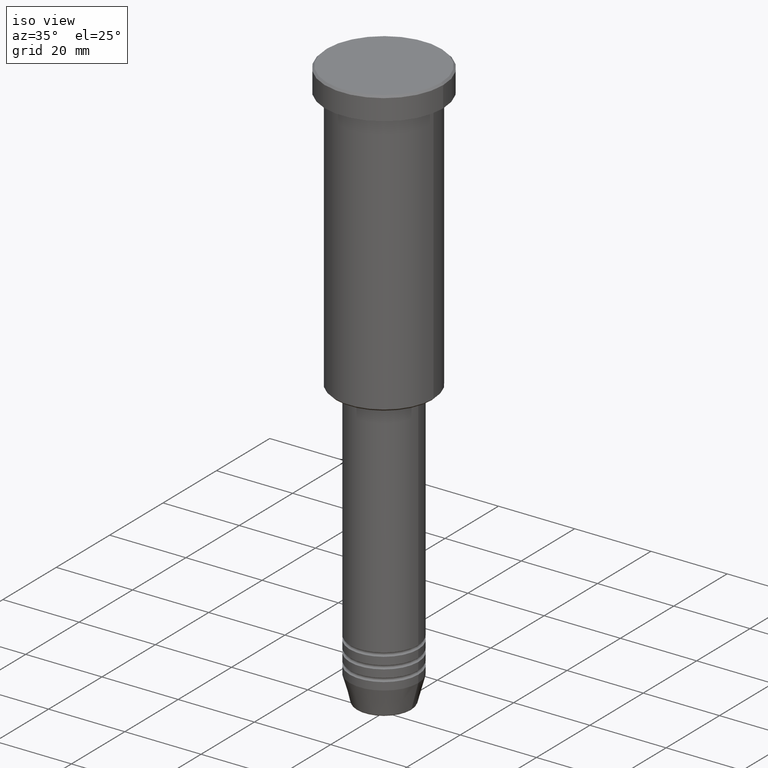
[diagram: clean part render]
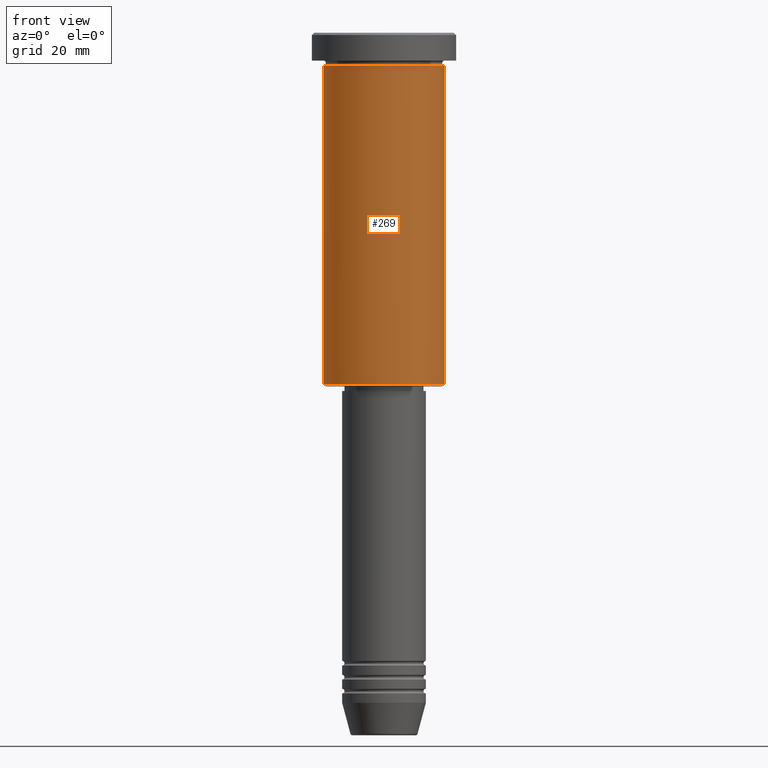
[diagram: tour spotlight — one face highlighted and labeled with its STEP entity id]
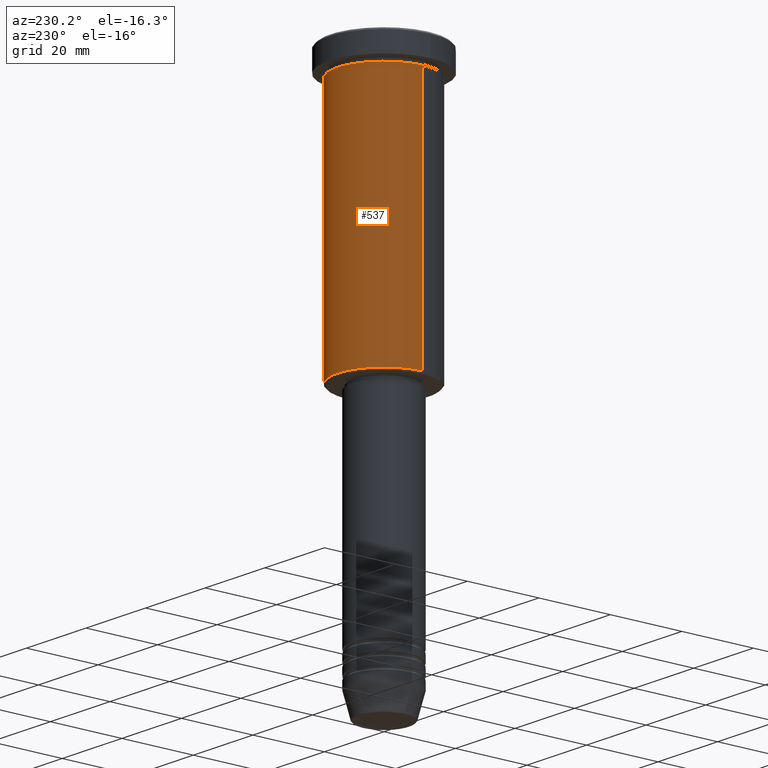
[diagram: tour spotlight — one face highlighted and labeled with its STEP entity id]
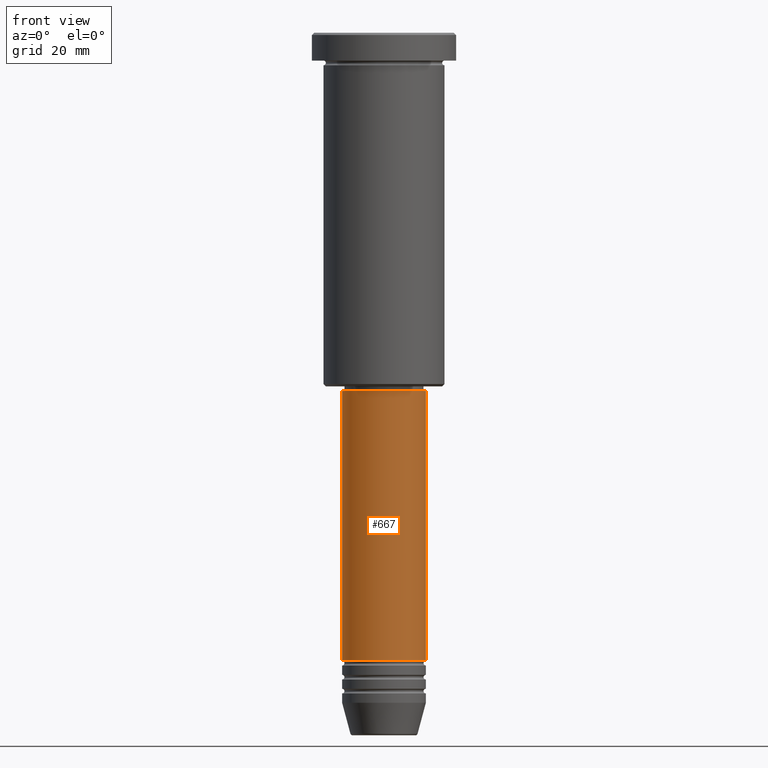
[diagram: tour spotlight — one face highlighted and labeled with its STEP entity id]
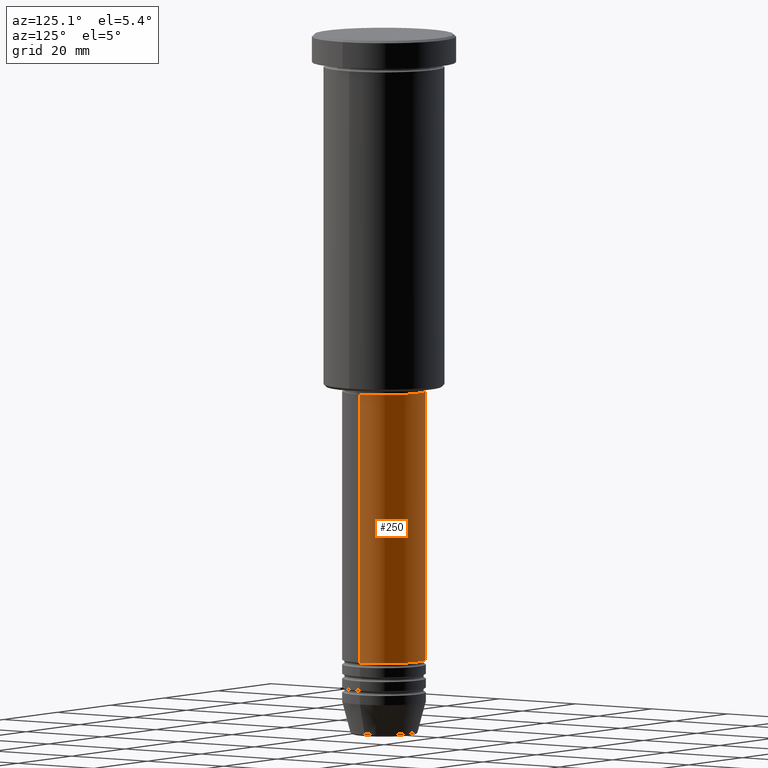
[diagram: tour spotlight — one face highlighted and labeled with its STEP entity id]
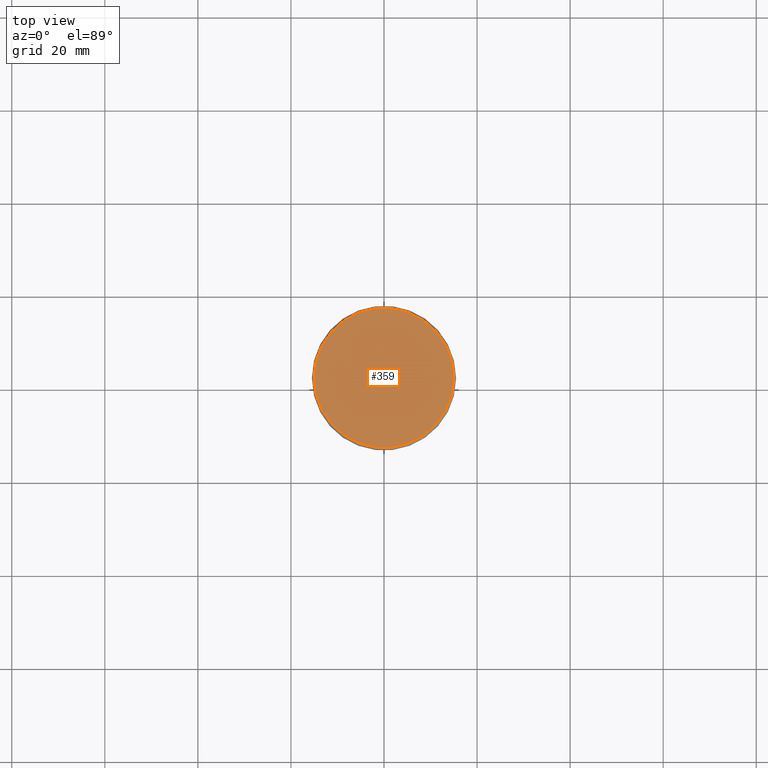
[diagram: tour spotlight — one face highlighted and labeled with its STEP entity id]
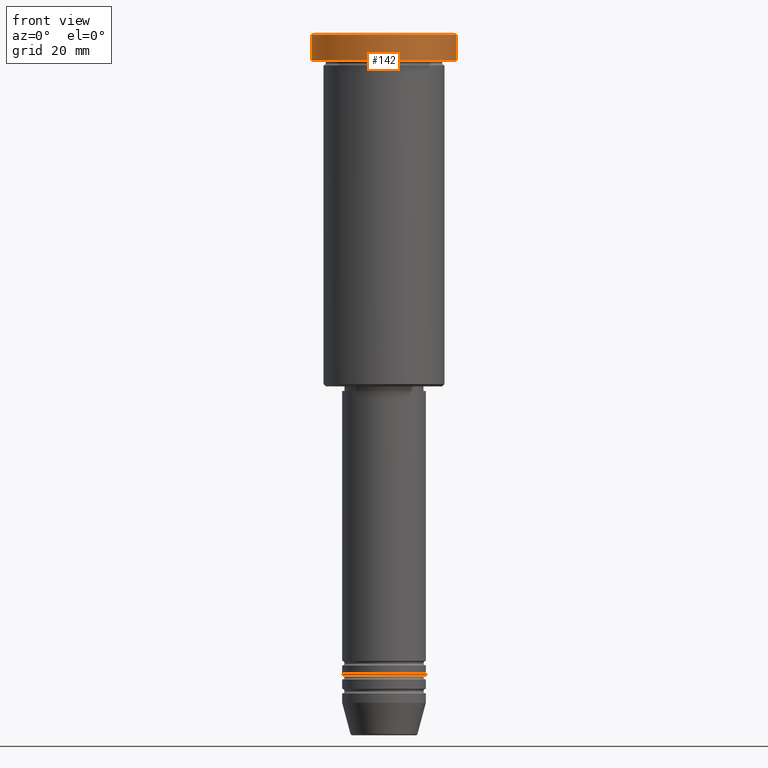
[diagram: tour spotlight — one face highlighted and labeled with its STEP entity id]
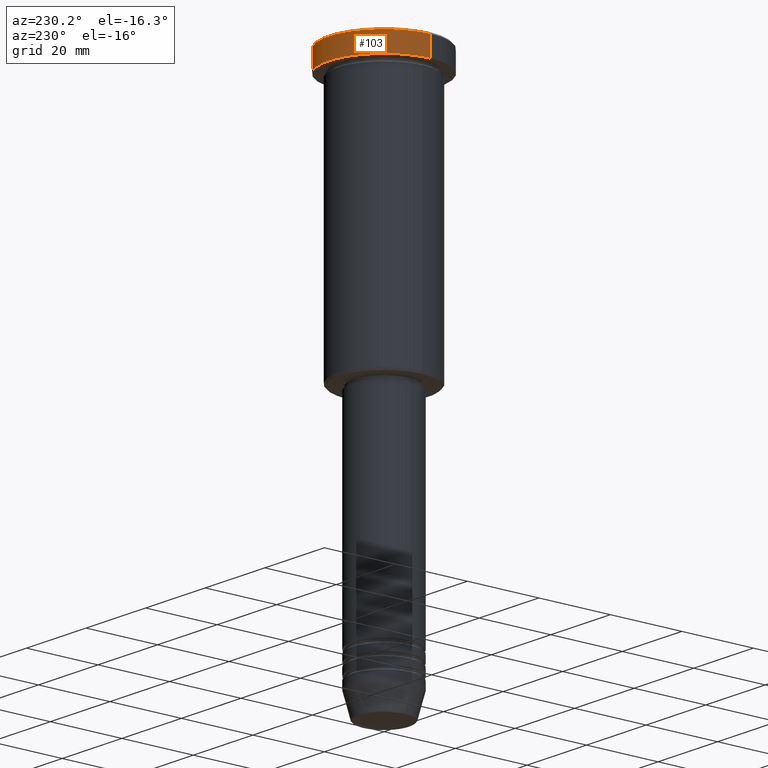
[diagram: tour spotlight — one face highlighted and labeled with its STEP entity id]
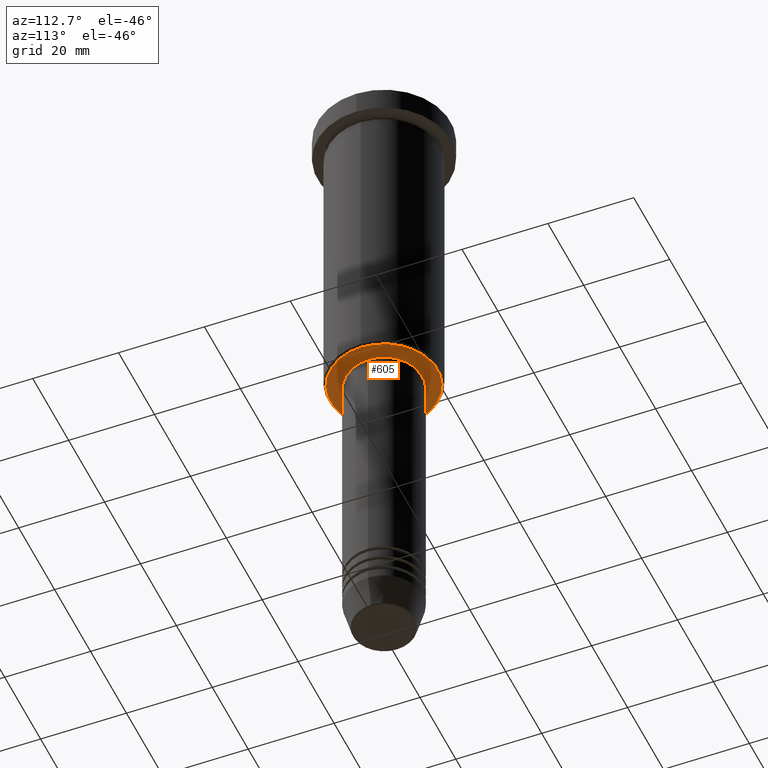
[diagram: tour spotlight — one face highlighted and labeled with its STEP entity id]
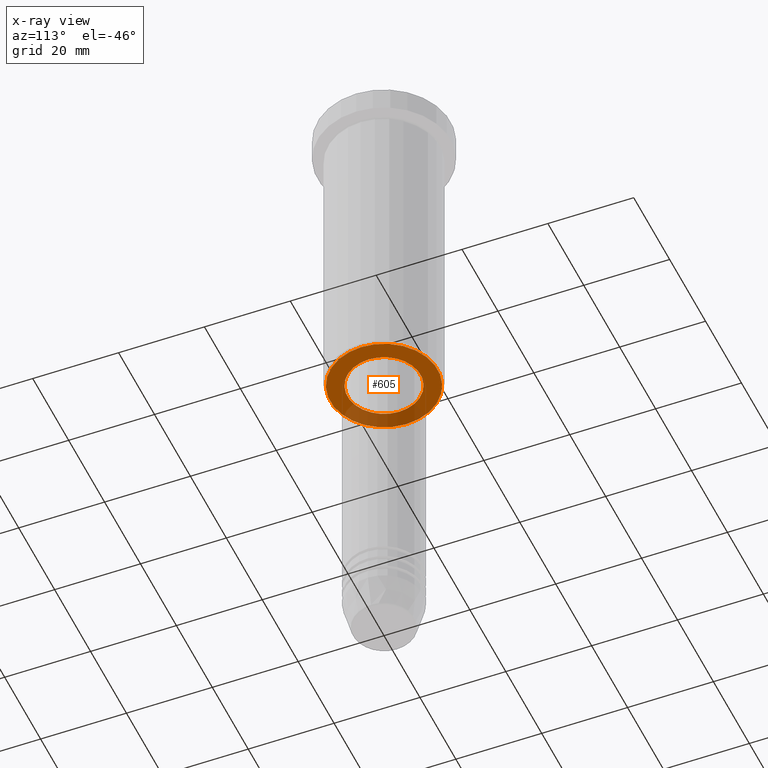
[diagram: x-ray of the same camera — body ghosted, this tour face saturated]
A machine part: a face-by-face anatomy tour. The part has 43 B-rep faces; the first image is the clean iso view, then the 8 largest visible faces are spotlighted one at a time (largest first), each with its STEP entity span.

Face 1 — front view, entity #269. In plain terms, the highlighted cylindrical surface (partial cylindrical patch) has radius 13 mm, axis along (-0, -0, 1).
Definition (entity closure, byte-faithful):
#53 = VECTOR ( 'NONE', #844, 1000.000000000000000 ) ;
#61 = EDGE_CURVE ( 'NONE', #1147, #967, #490, .T. ) ;
#65 = EDGE_CURVE ( 'NONE', #301, #457, #763, .T. ) ;
#74 = CARTESIAN_POINT ( 'NONE',  ( -13.00000000000000000, 1.592040838891559095E-15, -6.999999999999995559 ) ) ;
#119 = EDGE_CURVE ( 'NONE', #457, #967, #1103, .T. ) ;
#178 = ORIENTED_EDGE ( 'NONE', *, *, #65, .F. ) ;
#222 = DIRECTION ( 'NONE',  ( -1.000000000000000000, 0.000000000000000000, 0.000000000000000000 ) ) ;
#230 = CARTESIAN_POINT ( 'NONE',  ( -13.00000000000000000, 1.592040838891559095E-15, 0.000000000000000000 ) ) ;
#242 = CARTESIAN_POINT ( 'NONE',  ( 13.00000000000000000, 0.000000000000000000, -6.999999999999995559 ) ) ;
#257 = FACE_OUTER_BOUND ( 'NONE', #482, .T. ) ;
#269 = ADVANCED_FACE ( 'NONE', ( #257 ), #557, .T. ) ;
#299 = CARTESIAN_POINT ( 'NONE',  ( 0.000000000000000000, 0.000000000000000000, -6.999999999999995559 ) ) ;
#301 = VERTEX_POINT ( 'NONE', #1095 ) ;
#310 = ORIENTED_EDGE ( 'NONE', *, *, #858, .T. ) ;
#322 = DIRECTION ( 'NONE',  ( -0.000000000000000000, -0.000000000000000000, 1.000000000000000000 ) ) ;
#415 = AXIS2_PLACEMENT_3D ( 'NONE', #299, #649, #1107 ) ;
#457 = VERTEX_POINT ( 'NONE', #74 ) ;
#464 = DIRECTION ( 'NONE',  ( -0.000000000000000000, -0.000000000000000000, 1.000000000000000000 ) ) ;
#482 = EDGE_LOOP ( 'NONE', ( #178, #310, #787, #486 ) ) ;
#486 = ORIENTED_EDGE ( 'NONE', *, *, #119, .F. ) ;
#490 = LINE ( 'NONE', #1014, #53 ) ;
#557 = CYLINDRICAL_SURFACE ( 'NONE', #1122, 13.00000000000000000 ) ;
#578 = DIRECTION ( 'NONE',  ( -0.000000000000000000, -0.000000000000000000, 1.000000000000000000 ) ) ;
#579 = VECTOR ( 'NONE', #578, 1000.000000000000000 ) ;
#627 = CARTESIAN_POINT ( 'NONE',  ( 13.00000000000000000, 0.000000000000000000, -75.49999999999994316 ) ) ;
#649 = DIRECTION ( 'NONE',  ( -0.000000000000000000, -0.000000000000000000, 1.000000000000000000 ) ) ;
#670 = AXIS2_PLACEMENT_3D ( 'NONE', #1119, #322, #222 ) ;
#747 = DIRECTION ( 'NONE',  ( 1.000000000000000000, 0.000000000000000000, 0.000000000000000000 ) ) ;
#763 = LINE ( 'NONE', #230, #579 ) ;
#787 = ORIENTED_EDGE ( 'NONE', *, *, #61, .T. ) ;
#829 = CARTESIAN_POINT ( 'NONE',  ( 0.000000000000000000, 0.000000000000000000, 0.000000000000000000 ) ) ;
#844 = DIRECTION ( 'NONE',  ( -0.000000000000000000, -0.000000000000000000, 1.000000000000000000 ) ) ;
#858 = EDGE_CURVE ( 'NONE', #301, #1147, #1176, .T. ) ;
#967 = VERTEX_POINT ( 'NONE', #242 ) ;
#1014 = CARTESIAN_POINT ( 'NONE',  ( 13.00000000000000000, 0.000000000000000000, 0.000000000000000000 ) ) ;
#1095 = CARTESIAN_POINT ( 'NONE',  ( -13.00000000000000000, 1.592040838891559095E-15, -75.49999999999994316 ) ) ;
#1103 = CIRCLE ( 'NONE', #415, 13.00000000000000000 ) ;
#1107 = DIRECTION ( 'NONE',  ( 1.000000000000000000, 0.000000000000000000, 0.000000000000000000 ) ) ;
#1119 = CARTESIAN_POINT ( 'NONE',  ( 0.000000000000000000, 0.000000000000000000, -75.49999999999994316 ) ) ;
#1122 = AXIS2_PLACEMENT_3D ( 'NONE', #829, #464, #747 ) ;
#1147 = VERTEX_POINT ( 'NONE', #627 ) ;
#1176 = CIRCLE ( 'NONE', #670, 13.00000000000000000 ) ;

Face 2 — auxiliary view, entity #537. In plain terms, the highlighted cylindrical surface (partial cylindrical patch) has radius 13 mm, axis along (-0, -0, 1).
Definition (entity closure, byte-faithful):
#53 = VECTOR ( 'NONE', #844, 1000.000000000000000 ) ;
#61 = EDGE_CURVE ( 'NONE', #1147, #967, #490, .T. ) ;
#65 = EDGE_CURVE ( 'NONE', #301, #457, #763, .T. ) ;
#74 = CARTESIAN_POINT ( 'NONE',  ( -13.00000000000000000, 1.592040838891559095E-15, -6.999999999999995559 ) ) ;
#129 = DIRECTION ( 'NONE',  ( 1.000000000000000000, 0.000000000000000000, 0.000000000000000000 ) ) ;
#134 = DIRECTION ( 'NONE',  ( -0.000000000000000000, -0.000000000000000000, 1.000000000000000000 ) ) ;
#207 = ORIENTED_EDGE ( 'NONE', *, *, #836, .T. ) ;
#221 = AXIS2_PLACEMENT_3D ( 'NONE', #871, #599, #445 ) ;
#230 = CARTESIAN_POINT ( 'NONE',  ( -13.00000000000000000, 1.592040838891559095E-15, 0.000000000000000000 ) ) ;
#242 = CARTESIAN_POINT ( 'NONE',  ( 13.00000000000000000, 0.000000000000000000, -6.999999999999995559 ) ) ;
#293 = ORIENTED_EDGE ( 'NONE', *, *, #65, .T. ) ;
#301 = VERTEX_POINT ( 'NONE', #1095 ) ;
#305 = ORIENTED_EDGE ( 'NONE', *, *, #406, .F. ) ;
#406 = EDGE_CURVE ( 'NONE', #967, #457, #1000, .T. ) ;
#445 = DIRECTION ( 'NONE',  ( 1.000000000000000000, 0.000000000000000000, 0.000000000000000000 ) ) ;
#453 = ORIENTED_EDGE ( 'NONE', *, *, #61, .F. ) ;
#457 = VERTEX_POINT ( 'NONE', #74 ) ;
#489 = DIRECTION ( 'NONE',  ( -1.000000000000000000, 0.000000000000000000, 0.000000000000000000 ) ) ;
#490 = LINE ( 'NONE', #1014, #53 ) ;
#492 = CIRCLE ( 'NONE', #622, 13.00000000000000000 ) ;
#533 = AXIS2_PLACEMENT_3D ( 'NONE', #1168, #710, #129 ) ;
#537 = ADVANCED_FACE ( 'NONE', ( #800 ), #971, .T. ) ;
#578 = DIRECTION ( 'NONE',  ( -0.000000000000000000, -0.000000000000000000, 1.000000000000000000 ) ) ;
#579 = VECTOR ( 'NONE', #578, 1000.000000000000000 ) ;
#599 = DIRECTION ( 'NONE',  ( -0.000000000000000000, -0.000000000000000000, 1.000000000000000000 ) ) ;
#622 = AXIS2_PLACEMENT_3D ( 'NONE', #661, #134, #489 ) ;
#627 = CARTESIAN_POINT ( 'NONE',  ( 13.00000000000000000, 0.000000000000000000, -75.49999999999994316 ) ) ;
#661 = CARTESIAN_POINT ( 'NONE',  ( 0.000000000000000000, 0.000000000000000000, -75.49999999999994316 ) ) ;
#705 = EDGE_LOOP ( 'NONE', ( #207, #293, #305, #453 ) ) ;
#710 = DIRECTION ( 'NONE',  ( -0.000000000000000000, -0.000000000000000000, 1.000000000000000000 ) ) ;
#763 = LINE ( 'NONE', #230, #579 ) ;
#800 = FACE_OUTER_BOUND ( 'NONE', #705, .T. ) ;
#836 = EDGE_CURVE ( 'NONE', #1147, #301, #492, .T. ) ;
#844 = DIRECTION ( 'NONE',  ( -0.000000000000000000, -0.000000000000000000, 1.000000000000000000 ) ) ;
#871 = CARTESIAN_POINT ( 'NONE',  ( 0.000000000000000000, 0.000000000000000000, 0.000000000000000000 ) ) ;
#967 = VERTEX_POINT ( 'NONE', #242 ) ;
#971 = CYLINDRICAL_SURFACE ( 'NONE', #221, 13.00000000000000000 ) ;
#1000 = CIRCLE ( 'NONE', #533, 13.00000000000000000 ) ;
#1014 = CARTESIAN_POINT ( 'NONE',  ( 13.00000000000000000, 0.000000000000000000, 0.000000000000000000 ) ) ;
#1095 = CARTESIAN_POINT ( 'NONE',  ( -13.00000000000000000, 1.592040838891559095E-15, -75.49999999999994316 ) ) ;
#1147 = VERTEX_POINT ( 'NONE', #627 ) ;
#1168 = CARTESIAN_POINT ( 'NONE',  ( 0.000000000000000000, 0.000000000000000000, -6.999999999999995559 ) ) ;

Face 3 — front view, entity #667. In plain terms, the highlighted cylindrical surface (partial cylindrical patch) has radius 9 mm, axis along (-0, -0, 1).
Definition (entity closure, byte-faithful):
#57 = CARTESIAN_POINT ( 'NONE',  ( -9.000000000000000000, 1.102182119232617714E-15, 0.000000000000000000 ) ) ;
#84 = CARTESIAN_POINT ( 'NONE',  ( -9.000000000000000000, 1.102182119232617714E-15, -134.9999999999999432 ) ) ;
#93 = AXIS2_PLACEMENT_3D ( 'NONE', #700, #334, #522 ) ;
#96 = AXIS2_PLACEMENT_3D ( 'NONE', #186, #825, #281 ) ;
#175 = CARTESIAN_POINT ( 'NONE',  ( 9.000000000000000000, 0.000000000000000000, 0.000000000000000000 ) ) ;
#186 = CARTESIAN_POINT ( 'NONE',  ( 0.000000000000000000, 0.000000000000000000, 0.000000000000000000 ) ) ;
#199 = AXIS2_PLACEMENT_3D ( 'NONE', #1023, #312, #534 ) ;
#238 = CIRCLE ( 'NONE', #93, 9.000000000000000000 ) ;
#281 = DIRECTION ( 'NONE',  ( 1.000000000000000000, 0.000000000000000000, 0.000000000000000000 ) ) ;
#283 = ORIENTED_EDGE ( 'NONE', *, *, #501, .T. ) ;
#284 = VERTEX_POINT ( 'NONE', #456 ) ;
#312 = DIRECTION ( 'NONE',  ( -0.000000000000000000, -0.000000000000000000, 1.000000000000000000 ) ) ;
#334 = DIRECTION ( 'NONE',  ( -0.000000000000000000, -0.000000000000000000, 1.000000000000000000 ) ) ;
#371 = EDGE_CURVE ( 'NONE', #444, #925, #602, .T. ) ;
#374 = CYLINDRICAL_SURFACE ( 'NONE', #96, 9.000000000000000000 ) ;
#442 = CIRCLE ( 'NONE', #199, 9.000000000000000000 ) ;
#444 = VERTEX_POINT ( 'NONE', #885 ) ;
#456 = CARTESIAN_POINT ( 'NONE',  ( -9.000000000000000000, 1.102182119232617714E-15, -76.99999999999998579 ) ) ;
#501 = EDGE_CURVE ( 'NONE', #735, #444, #442, .T. ) ;
#522 = DIRECTION ( 'NONE',  ( 1.000000000000000000, 0.000000000000000000, 0.000000000000000000 ) ) ;
#534 = DIRECTION ( 'NONE',  ( 1.000000000000000000, 0.000000000000000000, 0.000000000000000000 ) ) ;
#555 = FACE_OUTER_BOUND ( 'NONE', #744, .T. ) ;
#596 = LINE ( 'NONE', #57, #1082 ) ;
#602 = LINE ( 'NONE', #175, #1042 ) ;
#612 = EDGE_CURVE ( 'NONE', #284, #925, #238, .T. ) ;
#617 = ORIENTED_EDGE ( 'NONE', *, *, #612, .F. ) ;
#667 = ADVANCED_FACE ( 'NONE', ( #555 ), #374, .T. ) ;
#700 = CARTESIAN_POINT ( 'NONE',  ( 0.000000000000000000, 0.000000000000000000, -76.99999999999998579 ) ) ;
#735 = VERTEX_POINT ( 'NONE', #84 ) ;
#744 = EDGE_LOOP ( 'NONE', ( #1005, #283, #778, #617 ) ) ;
#778 = ORIENTED_EDGE ( 'NONE', *, *, #371, .T. ) ;
#825 = DIRECTION ( 'NONE',  ( -0.000000000000000000, -0.000000000000000000, 1.000000000000000000 ) ) ;
#885 = CARTESIAN_POINT ( 'NONE',  ( 9.000000000000000000, 0.000000000000000000, -134.9999999999999432 ) ) ;
#925 = VERTEX_POINT ( 'NONE', #1043 ) ;
#965 = DIRECTION ( 'NONE',  ( -0.000000000000000000, -0.000000000000000000, 1.000000000000000000 ) ) ;
#990 = DIRECTION ( 'NONE',  ( -0.000000000000000000, -0.000000000000000000, 1.000000000000000000 ) ) ;
#1005 = ORIENTED_EDGE ( 'NONE', *, *, #1037, .F. ) ;
#1023 = CARTESIAN_POINT ( 'NONE',  ( 0.000000000000000000, 0.000000000000000000, -134.9999999999999432 ) ) ;
#1037 = EDGE_CURVE ( 'NONE', #735, #284, #596, .T. ) ;
#1042 = VECTOR ( 'NONE', #990, 1000.000000000000000 ) ;
#1043 = CARTESIAN_POINT ( 'NONE',  ( 9.000000000000000000, 0.000000000000000000, -76.99999999999998579 ) ) ;
#1082 = VECTOR ( 'NONE', #965, 1000.000000000000000 ) ;

Face 4 — auxiliary view, entity #250. In plain terms, the highlighted cylindrical surface (partial cylindrical patch) has radius 9 mm, axis along (-0, -0, 1).
Definition (entity closure, byte-faithful):
#57 = CARTESIAN_POINT ( 'NONE',  ( -9.000000000000000000, 1.102182119232617714E-15, 0.000000000000000000 ) ) ;
#71 = AXIS2_PLACEMENT_3D ( 'NONE', #499, #394, #410 ) ;
#78 = ORIENTED_EDGE ( 'NONE', *, *, #1037, .T. ) ;
#84 = CARTESIAN_POINT ( 'NONE',  ( -9.000000000000000000, 1.102182119232617714E-15, -134.9999999999999432 ) ) ;
#175 = CARTESIAN_POINT ( 'NONE',  ( 9.000000000000000000, 0.000000000000000000, 0.000000000000000000 ) ) ;
#206 = CYLINDRICAL_SURFACE ( 'NONE', #71, 9.000000000000000000 ) ;
#228 = DIRECTION ( 'NONE',  ( -0.000000000000000000, -0.000000000000000000, 1.000000000000000000 ) ) ;
#250 = ADVANCED_FACE ( 'NONE', ( #292 ), #206, .T. ) ;
#284 = VERTEX_POINT ( 'NONE', #456 ) ;
#292 = FACE_OUTER_BOUND ( 'NONE', #1033, .T. ) ;
#353 = DIRECTION ( 'NONE',  ( 1.000000000000000000, 0.000000000000000000, 0.000000000000000000 ) ) ;
#371 = EDGE_CURVE ( 'NONE', #444, #925, #602, .T. ) ;
#394 = DIRECTION ( 'NONE',  ( -0.000000000000000000, -0.000000000000000000, 1.000000000000000000 ) ) ;
#410 = DIRECTION ( 'NONE',  ( 1.000000000000000000, 0.000000000000000000, 0.000000000000000000 ) ) ;
#444 = VERTEX_POINT ( 'NONE', #885 ) ;
#456 = CARTESIAN_POINT ( 'NONE',  ( -9.000000000000000000, 1.102182119232617714E-15, -76.99999999999998579 ) ) ;
#499 = CARTESIAN_POINT ( 'NONE',  ( 0.000000000000000000, 0.000000000000000000, 0.000000000000000000 ) ) ;
#551 = EDGE_CURVE ( 'NONE', #444, #735, #962, .T. ) ;
#596 = LINE ( 'NONE', #57, #1082 ) ;
#602 = LINE ( 'NONE', #175, #1042 ) ;
#690 = CARTESIAN_POINT ( 'NONE',  ( 0.000000000000000000, 0.000000000000000000, -134.9999999999999432 ) ) ;
#695 = CIRCLE ( 'NONE', #852, 9.000000000000000000 ) ;
#735 = VERTEX_POINT ( 'NONE', #84 ) ;
#779 = DIRECTION ( 'NONE',  ( -0.000000000000000000, -0.000000000000000000, 1.000000000000000000 ) ) ;
#843 = CARTESIAN_POINT ( 'NONE',  ( 0.000000000000000000, 0.000000000000000000, -76.99999999999998579 ) ) ;
#852 = AXIS2_PLACEMENT_3D ( 'NONE', #843, #228, #1131 ) ;
#856 = ORIENTED_EDGE ( 'NONE', *, *, #934, .F. ) ;
#885 = CARTESIAN_POINT ( 'NONE',  ( 9.000000000000000000, 0.000000000000000000, -134.9999999999999432 ) ) ;
#916 = ORIENTED_EDGE ( 'NONE', *, *, #371, .F. ) ;
#925 = VERTEX_POINT ( 'NONE', #1043 ) ;
#934 = EDGE_CURVE ( 'NONE', #925, #284, #695, .T. ) ;
#962 = CIRCLE ( 'NONE', #1136, 9.000000000000000000 ) ;
#965 = DIRECTION ( 'NONE',  ( -0.000000000000000000, -0.000000000000000000, 1.000000000000000000 ) ) ;
#990 = DIRECTION ( 'NONE',  ( -0.000000000000000000, -0.000000000000000000, 1.000000000000000000 ) ) ;
#1033 = EDGE_LOOP ( 'NONE', ( #1055, #78, #856, #916 ) ) ;
#1037 = EDGE_CURVE ( 'NONE', #735, #284, #596, .T. ) ;
#1042 = VECTOR ( 'NONE', #990, 1000.000000000000000 ) ;
#1043 = CARTESIAN_POINT ( 'NONE',  ( 9.000000000000000000, 0.000000000000000000, -76.99999999999998579 ) ) ;
#1055 = ORIENTED_EDGE ( 'NONE', *, *, #551, .T. ) ;
#1082 = VECTOR ( 'NONE', #965, 1000.000000000000000 ) ;
#1131 = DIRECTION ( 'NONE',  ( 1.000000000000000000, 0.000000000000000000, 0.000000000000000000 ) ) ;
#1136 = AXIS2_PLACEMENT_3D ( 'NONE', #690, #779, #353 ) ;

Face 5 — top view, entity #359. In plain terms, the highlighted planar face has unit normal (0, -0, 1).
Definition (entity closure, byte-faithful):
#6 = DIRECTION ( 'NONE',  ( -0.000000000000000000, -0.000000000000000000, 1.000000000000000000 ) ) ;
#55 = CIRCLE ( 'NONE', #201, 15.00000000000001421 ) ;
#180 = CARTESIAN_POINT ( 'NONE',  ( 0.000000000000000000, 0.000000000000000000, 0.000000000000000000 ) ) ;
#184 = DIRECTION ( 'NONE',  ( 1.000000000000000000, 0.000000000000000000, 0.000000000000000000 ) ) ;
#201 = AXIS2_PLACEMENT_3D ( 'NONE', #448, #803, #736 ) ;
#214 = CARTESIAN_POINT ( 'NONE',  ( 0.000000000000000000, 0.000000000000000000, 0.000000000000000000 ) ) ;
#286 = VERTEX_POINT ( 'NONE', #1182 ) ;
#333 = CARTESIAN_POINT ( 'NONE',  ( -15.00000000000001421, 0.000000000000000000, 0.000000000000000000 ) ) ;
#350 = AXIS2_PLACEMENT_3D ( 'NONE', #214, #6, #561 ) ;
#357 = PLANE ( 'NONE',  #889 ) ;
#359 = ADVANCED_FACE ( 'NONE', ( #969 ), #357, .T. ) ;
#446 = DIRECTION ( 'NONE',  ( 0.000000000000000000, -0.000000000000000000, 1.000000000000000000 ) ) ;
#448 = CARTESIAN_POINT ( 'NONE',  ( 0.000000000000000000, 0.000000000000000000, 0.000000000000000000 ) ) ;
#500 = VERTEX_POINT ( 'NONE', #333 ) ;
#561 = DIRECTION ( 'NONE',  ( 1.000000000000000000, 0.000000000000000000, 0.000000000000000000 ) ) ;
#568 = CIRCLE ( 'NONE', #350, 15.00000000000001421 ) ;
#632 = EDGE_LOOP ( 'NONE', ( #1116, #1160 ) ) ;
#736 = DIRECTION ( 'NONE',  ( 1.000000000000000000, 0.000000000000000000, 0.000000000000000000 ) ) ;
#770 = EDGE_CURVE ( 'NONE', #500, #286, #568, .T. ) ;
#783 = EDGE_CURVE ( 'NONE', #286, #500, #55, .T. ) ;
#803 = DIRECTION ( 'NONE',  ( -0.000000000000000000, -0.000000000000000000, 1.000000000000000000 ) ) ;
#889 = AXIS2_PLACEMENT_3D ( 'NONE', #180, #446, #184 ) ;
#969 = FACE_OUTER_BOUND ( 'NONE', #632, .T. ) ;
#1116 = ORIENTED_EDGE ( 'NONE', *, *, #770, .T. ) ;
#1160 = ORIENTED_EDGE ( 'NONE', *, *, #783, .T. ) ;
#1182 = CARTESIAN_POINT ( 'NONE',  ( 15.00000000000001421, 1.867586368699714559E-15, 0.000000000000000000 ) ) ;

Face 6 — front view, entity #142. In plain terms, the highlighted cylindrical surface (partial cylindrical patch) has radius 15.5 mm, axis along (-0, -0, 1).
Definition (entity closure, byte-faithful):
#3 = DIRECTION ( 'NONE',  ( -0.000000000000000000, -0.000000000000000000, 1.000000000000000000 ) ) ;
#4 = ORIENTED_EDGE ( 'NONE', *, *, #7, .T. ) ;
#7 = EDGE_CURVE ( 'NONE', #264, #118, #217, .T. ) ;
#35 = AXIS2_PLACEMENT_3D ( 'NONE', #872, #341, #1062 ) ;
#54 = AXIS2_PLACEMENT_3D ( 'NONE', #271, #1143, #1129 ) ;
#80 = CARTESIAN_POINT ( 'NONE',  ( 0.000000000000000000, 0.000000000000000000, -5.999999999999995559 ) ) ;
#94 = DIRECTION ( 'NONE',  ( -0.000000000000000000, -0.000000000000000000, 1.000000000000000000 ) ) ;
#105 = CARTESIAN_POINT ( 'NONE',  ( -15.50000000000000000, 1.898202538678397557E-15, -0.4999999999999848455 ) ) ;
#118 = VERTEX_POINT ( 'NONE', #1126 ) ;
#142 = ADVANCED_FACE ( 'NONE', ( #1052 ), #961, .T. ) ;
#196 = VECTOR ( 'NONE', #3, 1000.000000000000000 ) ;
#217 = LINE ( 'NONE', #742, #196 ) ;
#264 = VERTEX_POINT ( 'NONE', #948 ) ;
#271 = CARTESIAN_POINT ( 'NONE',  ( 0.000000000000000000, 0.000000000000000000, -0.4999999999999848455 ) ) ;
#341 = DIRECTION ( 'NONE',  ( -0.000000000000000000, -0.000000000000000000, 1.000000000000000000 ) ) ;
#342 = ORIENTED_EDGE ( 'NONE', *, *, #1178, .T. ) ;
#402 = VECTOR ( 'NONE', #413, 1000.000000000000000 ) ;
#413 = DIRECTION ( 'NONE',  ( -0.000000000000000000, -0.000000000000000000, 1.000000000000000000 ) ) ;
#463 = EDGE_CURVE ( 'NONE', #118, #817, #908, .T. ) ;
#519 = EDGE_LOOP ( 'NONE', ( #526, #342, #4, #900 ) ) ;
#526 = ORIENTED_EDGE ( 'NONE', *, *, #894, .F. ) ;
#556 = VERTEX_POINT ( 'NONE', #1167 ) ;
#742 = CARTESIAN_POINT ( 'NONE',  ( 15.50000000000000000, 0.000000000000000000, 0.000000000000000000 ) ) ;
#749 = CARTESIAN_POINT ( 'NONE',  ( -15.50000000000000000, 1.898202538678397557E-15, 0.000000000000000000 ) ) ;
#791 = CIRCLE ( 'NONE', #959, 15.50000000000000000 ) ;
#817 = VERTEX_POINT ( 'NONE', #105 ) ;
#872 = CARTESIAN_POINT ( 'NONE',  ( 0.000000000000000000, 0.000000000000000000, 0.000000000000000000 ) ) ;
#894 = EDGE_CURVE ( 'NONE', #556, #817, #1024, .T. ) ;
#900 = ORIENTED_EDGE ( 'NONE', *, *, #463, .T. ) ;
#908 = CIRCLE ( 'NONE', #54, 15.50000000000000000 ) ;
#948 = CARTESIAN_POINT ( 'NONE',  ( 15.50000000000000000, 0.000000000000000000, -5.999999999999995559 ) ) ;
#959 = AXIS2_PLACEMENT_3D ( 'NONE', #80, #94, #1180 ) ;
#961 = CYLINDRICAL_SURFACE ( 'NONE', #35, 15.50000000000000000 ) ;
#1024 = LINE ( 'NONE', #749, #402 ) ;
#1052 = FACE_OUTER_BOUND ( 'NONE', #519, .T. ) ;
#1062 = DIRECTION ( 'NONE',  ( 1.000000000000000000, 0.000000000000000000, 0.000000000000000000 ) ) ;
#1126 = CARTESIAN_POINT ( 'NONE',  ( 15.50000000000000000, 0.000000000000000000, -0.4999999999999848455 ) ) ;
#1129 = DIRECTION ( 'NONE',  ( 1.000000000000000000, 0.000000000000000000, 0.000000000000000000 ) ) ;
#1143 = DIRECTION ( 'NONE',  ( 0.000000000000000000, 0.000000000000000000, -1.000000000000000000 ) ) ;
#1167 = CARTESIAN_POINT ( 'NONE',  ( -15.50000000000000000, 1.898202538678397557E-15, -5.999999999999995559 ) ) ;
#1178 = EDGE_CURVE ( 'NONE', #556, #264, #791, .T. ) ;
#1180 = DIRECTION ( 'NONE',  ( 1.000000000000000000, 0.000000000000000000, 0.000000000000000000 ) ) ;

Face 7 — auxiliary view, entity #103. In plain terms, the highlighted cylindrical surface (partial cylindrical patch) has radius 15.5 mm, axis along (-0, -0, 1).
Definition (entity closure, byte-faithful):
#3 = DIRECTION ( 'NONE',  ( -0.000000000000000000, -0.000000000000000000, 1.000000000000000000 ) ) ;
#7 = EDGE_CURVE ( 'NONE', #264, #118, #217, .T. ) ;
#98 = EDGE_CURVE ( 'NONE', #264, #556, #348, .T. ) ;
#103 = ADVANCED_FACE ( 'NONE', ( #609 ), #518, .T. ) ;
#105 = CARTESIAN_POINT ( 'NONE',  ( -15.50000000000000000, 1.898202538678397557E-15, -0.4999999999999848455 ) ) ;
#118 = VERTEX_POINT ( 'NONE', #1126 ) ;
#141 = CARTESIAN_POINT ( 'NONE',  ( 0.000000000000000000, 0.000000000000000000, -5.999999999999995559 ) ) ;
#147 = DIRECTION ( 'NONE',  ( 0.000000000000000000, 0.000000000000000000, -1.000000000000000000 ) ) ;
#172 = DIRECTION ( 'NONE',  ( 1.000000000000000000, 0.000000000000000000, 0.000000000000000000 ) ) ;
#196 = VECTOR ( 'NONE', #3, 1000.000000000000000 ) ;
#217 = LINE ( 'NONE', #742, #196 ) ;
#264 = VERTEX_POINT ( 'NONE', #948 ) ;
#265 = DIRECTION ( 'NONE',  ( 1.000000000000000000, 0.000000000000000000, 0.000000000000000000 ) ) ;
#343 = ORIENTED_EDGE ( 'NONE', *, *, #894, .T. ) ;
#348 = CIRCLE ( 'NONE', #666, 15.50000000000000000 ) ;
#365 = CARTESIAN_POINT ( 'NONE',  ( 0.000000000000000000, 0.000000000000000000, 0.000000000000000000 ) ) ;
#402 = VECTOR ( 'NONE', #413, 1000.000000000000000 ) ;
#413 = DIRECTION ( 'NONE',  ( -0.000000000000000000, -0.000000000000000000, 1.000000000000000000 ) ) ;
#432 = DIRECTION ( 'NONE',  ( -0.000000000000000000, -0.000000000000000000, 1.000000000000000000 ) ) ;
#466 = ORIENTED_EDGE ( 'NONE', *, *, #98, .T. ) ;
#474 = CIRCLE ( 'NONE', #1084, 15.50000000000000000 ) ;
#476 = EDGE_CURVE ( 'NONE', #817, #118, #474, .T. ) ;
#518 = CYLINDRICAL_SURFACE ( 'NONE', #809, 15.50000000000000000 ) ;
#556 = VERTEX_POINT ( 'NONE', #1167 ) ;
#562 = ORIENTED_EDGE ( 'NONE', *, *, #7, .F. ) ;
#587 = CARTESIAN_POINT ( 'NONE',  ( 0.000000000000000000, 0.000000000000000000, -0.4999999999999848455 ) ) ;
#609 = FACE_OUTER_BOUND ( 'NONE', #636, .T. ) ;
#636 = EDGE_LOOP ( 'NONE', ( #466, #343, #804, #562 ) ) ;
#666 = AXIS2_PLACEMENT_3D ( 'NONE', #141, #432, #265 ) ;
#721 = DIRECTION ( 'NONE',  ( 1.000000000000000000, 0.000000000000000000, 0.000000000000000000 ) ) ;
#742 = CARTESIAN_POINT ( 'NONE',  ( 15.50000000000000000, 0.000000000000000000, 0.000000000000000000 ) ) ;
#749 = CARTESIAN_POINT ( 'NONE',  ( -15.50000000000000000, 1.898202538678397557E-15, 0.000000000000000000 ) ) ;
#804 = ORIENTED_EDGE ( 'NONE', *, *, #476, .T. ) ;
#809 = AXIS2_PLACEMENT_3D ( 'NONE', #365, #983, #721 ) ;
#817 = VERTEX_POINT ( 'NONE', #105 ) ;
#894 = EDGE_CURVE ( 'NONE', #556, #817, #1024, .T. ) ;
#948 = CARTESIAN_POINT ( 'NONE',  ( 15.50000000000000000, 0.000000000000000000, -5.999999999999995559 ) ) ;
#983 = DIRECTION ( 'NONE',  ( -0.000000000000000000, -0.000000000000000000, 1.000000000000000000 ) ) ;
#1024 = LINE ( 'NONE', #749, #402 ) ;
#1084 = AXIS2_PLACEMENT_3D ( 'NONE', #587, #147, #172 ) ;
#1126 = CARTESIAN_POINT ( 'NONE',  ( 15.50000000000000000, 0.000000000000000000, -0.4999999999999848455 ) ) ;
#1167 = CARTESIAN_POINT ( 'NONE',  ( -15.50000000000000000, 1.898202538678397557E-15, -5.999999999999995559 ) ) ;

Face 8 — auxiliary view, entity #605. An x-ray twin of the same camera follows (body ghosted, this face saturated) — the face is partly hidden behind the body. In plain terms, the highlighted planar face has unit normal (0, 0, -1).
Definition (entity closure, byte-faithful):
#27 = DIRECTION ( 'NONE',  ( 1.000000000000000000, 0.000000000000000000, 0.000000000000000000 ) ) ;
#29 = VERTEX_POINT ( 'NONE', #838 ) ;
#58 = EDGE_CURVE ( 'NONE', #290, #553, #296, .T. ) ;
#63 = DIRECTION ( 'NONE',  ( -0.000000000000000000, -0.000000000000000000, 1.000000000000000000 ) ) ;
#92 = ORIENTED_EDGE ( 'NONE', *, *, #58, .T. ) ;
#101 = CARTESIAN_POINT ( 'NONE',  ( 12.49999999999995559, 0.000000000000000000, -75.99999999999998579 ) ) ;
#182 = DIRECTION ( 'NONE',  ( 0.000000000000000000, 0.000000000000000000, -1.000000000000000000 ) ) ;
#290 = VERTEX_POINT ( 'NONE', #740 ) ;
#296 = CIRCLE ( 'NONE', #850, 8.499999999999998224 ) ;
#324 = DIRECTION ( 'NONE',  ( -1.000000000000000000, 0.000000000000000000, 0.000000000000000000 ) ) ;
#338 = VERTEX_POINT ( 'NONE', #101 ) ;
#344 = CIRCLE ( 'NONE', #958, 12.49999999999995559 ) ;
#346 = FACE_BOUND ( 'NONE', #794, .T. ) ;
#417 = EDGE_LOOP ( 'NONE', ( #440, #919 ) ) ;
#425 = CARTESIAN_POINT ( 'NONE',  ( -8.499999999999998224, 1.040949779275249943E-15, -75.99999999999998579 ) ) ;
#431 = DIRECTION ( 'NONE',  ( 1.000000000000000000, 0.000000000000000000, 0.000000000000000000 ) ) ;
#440 = ORIENTED_EDGE ( 'NONE', *, *, #942, .T. ) ;
#452 = DIRECTION ( 'NONE',  ( -1.000000000000000000, 0.000000000000000000, 0.000000000000000000 ) ) ;
#485 = CARTESIAN_POINT ( 'NONE',  ( 0.000000000000000000, 0.000000000000000000, -75.99999999999998579 ) ) ;
#510 = PLANE ( 'NONE',  #831 ) ;
#545 = CIRCLE ( 'NONE', #902, 12.49999999999995559 ) ;
#550 = CARTESIAN_POINT ( 'NONE',  ( 0.000000000000000000, 0.000000000000000000, -75.99999999999998579 ) ) ;
#553 = VERTEX_POINT ( 'NONE', #425 ) ;
#605 = ADVANCED_FACE ( 'NONE', ( #984, #346 ), #510, .T. ) ;
#607 = CARTESIAN_POINT ( 'NONE',  ( 0.000000000000000000, 13.00000000000000000, -75.99999999999998579 ) ) ;
#651 = EDGE_CURVE ( 'NONE', #553, #290, #714, .T. ) ;
#686 = EDGE_CURVE ( 'NONE', #29, #338, #545, .T. ) ;
#714 = CIRCLE ( 'NONE', #910, 8.499999999999998224 ) ;
#740 = CARTESIAN_POINT ( 'NONE',  ( 8.499999999999998224, 0.000000000000000000, -75.99999999999998579 ) ) ;
#786 = DIRECTION ( 'NONE',  ( -1.000000000000000000, 0.000000000000000000, -0.000000000000000000 ) ) ;
#794 = EDGE_LOOP ( 'NONE', ( #92, #1031 ) ) ;
#831 = AXIS2_PLACEMENT_3D ( 'NONE', #607, #182, #786 ) ;
#838 = CARTESIAN_POINT ( 'NONE',  ( -12.49999999999995559, 1.561424668912872745E-15, -75.99999999999998579 ) ) ;
#850 = AXIS2_PLACEMENT_3D ( 'NONE', #485, #1025, #27 ) ;
#860 = DIRECTION ( 'NONE',  ( 0.000000000000000000, 0.000000000000000000, -1.000000000000000000 ) ) ;
#876 = CARTESIAN_POINT ( 'NONE',  ( 0.000000000000000000, 0.000000000000000000, -75.99999999999998579 ) ) ;
#902 = AXIS2_PLACEMENT_3D ( 'NONE', #550, #1088, #452 ) ;
#910 = AXIS2_PLACEMENT_3D ( 'NONE', #876, #63, #431 ) ;
#919 = ORIENTED_EDGE ( 'NONE', *, *, #686, .T. ) ;
#942 = EDGE_CURVE ( 'NONE', #338, #29, #344, .T. ) ;
#958 = AXIS2_PLACEMENT_3D ( 'NONE', #1130, #860, #324 ) ;
#984 = FACE_OUTER_BOUND ( 'NONE', #417, .T. ) ;
#1025 = DIRECTION ( 'NONE',  ( -0.000000000000000000, -0.000000000000000000, 1.000000000000000000 ) ) ;
#1031 = ORIENTED_EDGE ( 'NONE', *, *, #651, .T. ) ;
#1088 = DIRECTION ( 'NONE',  ( 0.000000000000000000, 0.000000000000000000, -1.000000000000000000 ) ) ;
#1130 = CARTESIAN_POINT ( 'NONE',  ( 0.000000000000000000, 0.000000000000000000, -75.99999999999998579 ) ) ;